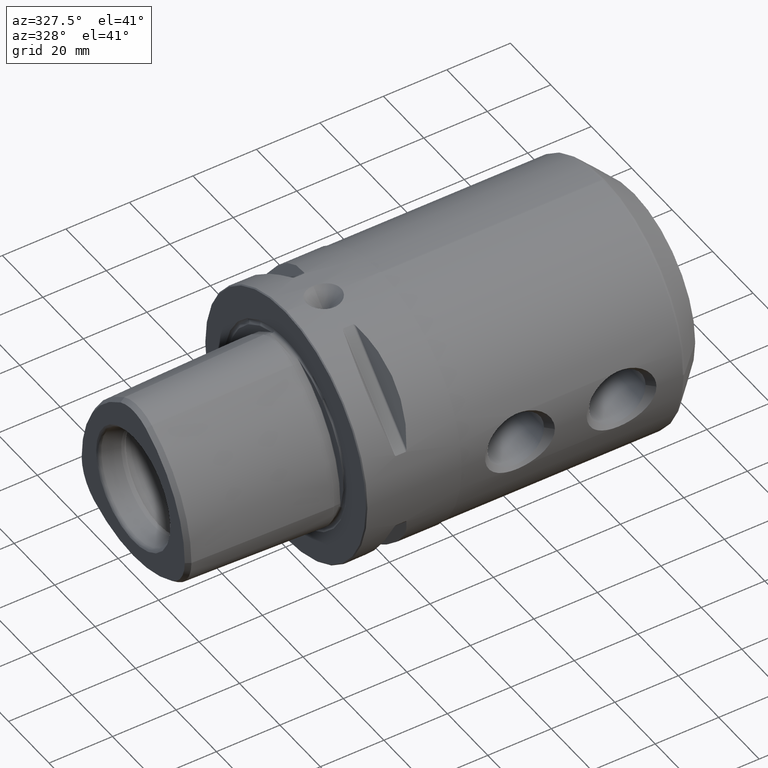
[diagram: clean part render]
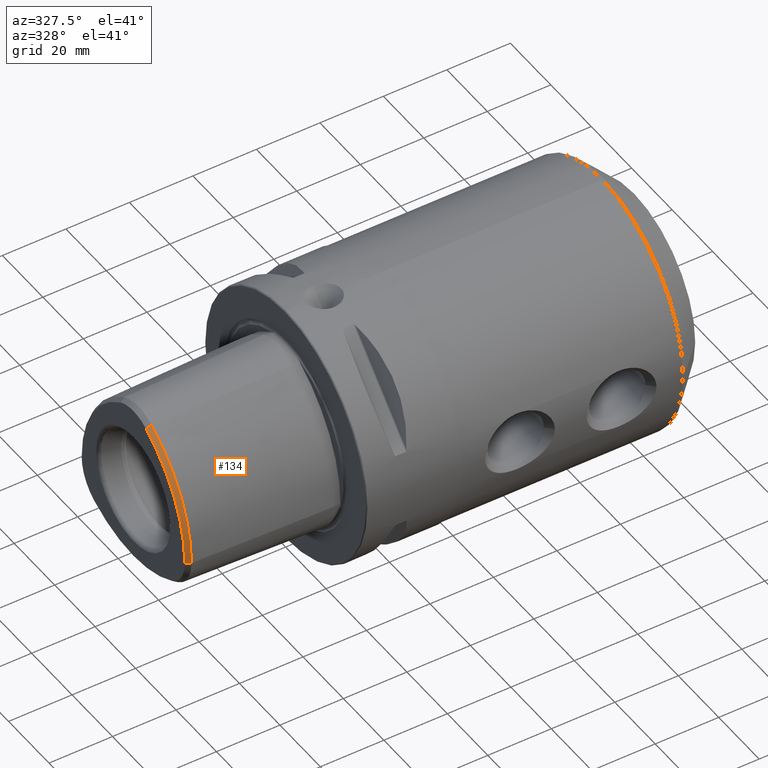
[diagram: same view with one face highlighted and labeled with its STEP entity id]
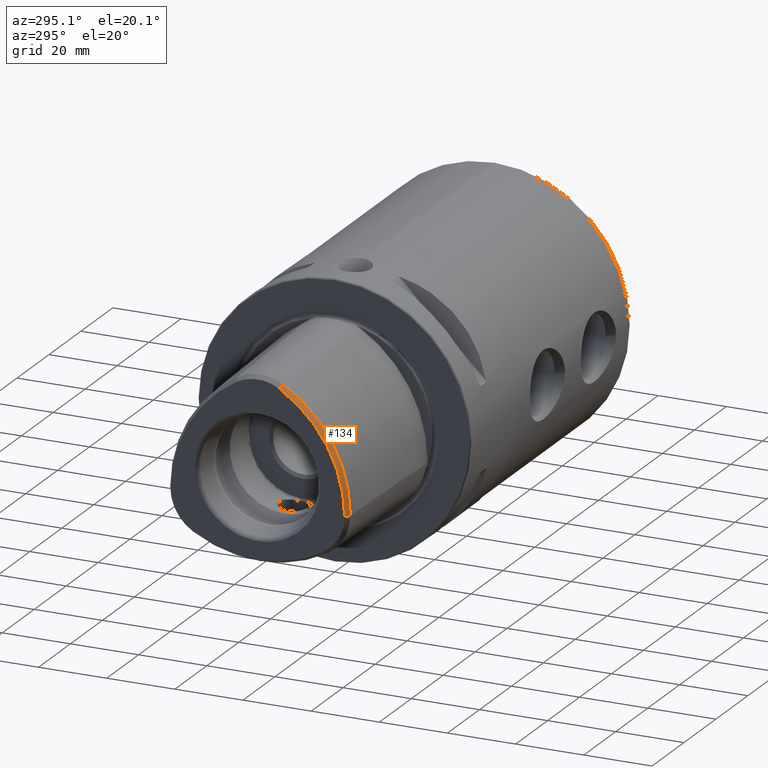
[diagram: same view with one face highlighted and labeled with its STEP entity id]
A machine part, auxiliary view. The second image highlights one B-rep face of the part: STEP entity #134.
A second angle (auxiliary view) of the same face is appended — the face is thin or edge-on in the first view.
In plain terms, the highlighted conical surface has half-angle 31.432 deg.
Its self-contained STEP definition (entity closure, byte-faithful):
#134 = ADVANCED_FACE( '', ( #363 ), #364, .T. );
#363 = FACE_OUTER_BOUND( '', #734, .T. );
#364 = CONICAL_SURFACE( '', #735, 38.4135721663715, 0.548595768957526 );
#734 = EDGE_LOOP( '', ( #1112, #1113, #1114, #1115 ) );
#735 = AXIS2_PLACEMENT_3D( '', #1116, #1117, #1118 );
#1112 = ORIENTED_EDGE( '', *, *, #1916, .T. );
#1113 = ORIENTED_EDGE( '', *, *, #1917, .F. );
#1114 = ORIENTED_EDGE( '', *, *, #1918, .F. );
#1115 = ORIENTED_EDGE( '', *, *, #1919, .F. );
#1116 = CARTESIAN_POINT( '', ( -48.0000000000000, 12.9282032302755, -7.46410161513774 ) );
#1117 = DIRECTION( '', ( 1.00000000000000, -0.000000000000000, 0.000000000000000 ) );
#1118 = DIRECTION( '', ( 0.000000000000000, 0.000000000000000, -1.00000000000000 ) );
#1916 = EDGE_CURVE( '', #2231, #2232, #2233, .T. );
#1917 = EDGE_CURVE( '', #2234, #2232, #2235, .T. );
#1918 = EDGE_CURVE( '', #2236, #2234, #2237, .T. );
#1919 = EDGE_CURVE( '', #2231, #2236, #2238, .T. );
#2231 = VERTEX_POINT( '', #2693 );
#2232 = VERTEX_POINT( '', #2694 );
#2233 = LINE( '', #2695, #2696 );
#2234 = VERTEX_POINT( '', #2697 );
#2235 = CIRCLE( '', #2698, 39.3410456644326 );
#2236 = VERTEX_POINT( '', #2699 );
#2237 = LINE( '', #2700, #2701 );
#2238 = CIRCLE( '', #2702, 38.4135721663715 );
#2693 = CARTESIAN_POINT( '', ( -48.0000000000000, -25.4853689360959, -7.46410161513774 ) );
#2694 = CARTESIAN_POINT( '', ( -46.4824742362102, -26.4128424341571, -7.46410161513773 ) );
#2695 = CARTESIAN_POINT( '', ( -48.0000000000000, -25.4853689360960, -7.46410161513774 ) );
#2696 = VECTOR( '', #4133, 1000.00000000000 );
#2697 = CARTESIAN_POINT( '', ( -46.4824742362102, -6.74231960194083, 26.6062433417045 ) );
#2698 = AXIS2_PLACEMENT_3D( '', #4134, #4135, #4136 );
#2699 = CARTESIAN_POINT( '', ( -48.0000000000000, -6.27858285291023, 25.8030277310468 ) );
#2700 = CARTESIAN_POINT( '', ( -48.0000000000000, -6.27858285291023, 25.8030277310468 ) );
#2701 = VECTOR( '', #4137, 1000.00000000000 );
#2702 = AXIS2_PLACEMENT_3D( '', #4138, #4139, #4140 );
#4133 = DIRECTION( '', ( 0.853257654919241, -0.521489572591550, 9.75381189805194E-016 ) );
#4134 = CARTESIAN_POINT( '', ( -46.4824742362102, 12.9282032302755, -7.46410161513774 ) );
#4135 = DIRECTION( '', ( 1.00000000000000, 0.000000000000000, 0.000000000000000 ) );
#4136 = DIRECTION( '', ( 0.000000000000000, 0.000000000000000, -1.00000000000000 ) );
#4137 = DIRECTION( '', ( 0.853257654919239, -0.260744786295777, 0.451623217672973 ) );
#4138 = CARTESIAN_POINT( '', ( -48.0000000000000, 12.9282032302755, -7.46410161513774 ) );
#4139 = DIRECTION( '', ( -1.00000000000000, 6.12303176911189E-017, 0.000000000000000 ) );
#4140 = DIRECTION( '', ( -6.12303176911189E-017, -1.00000000000000, 0.000000000000000 ) );